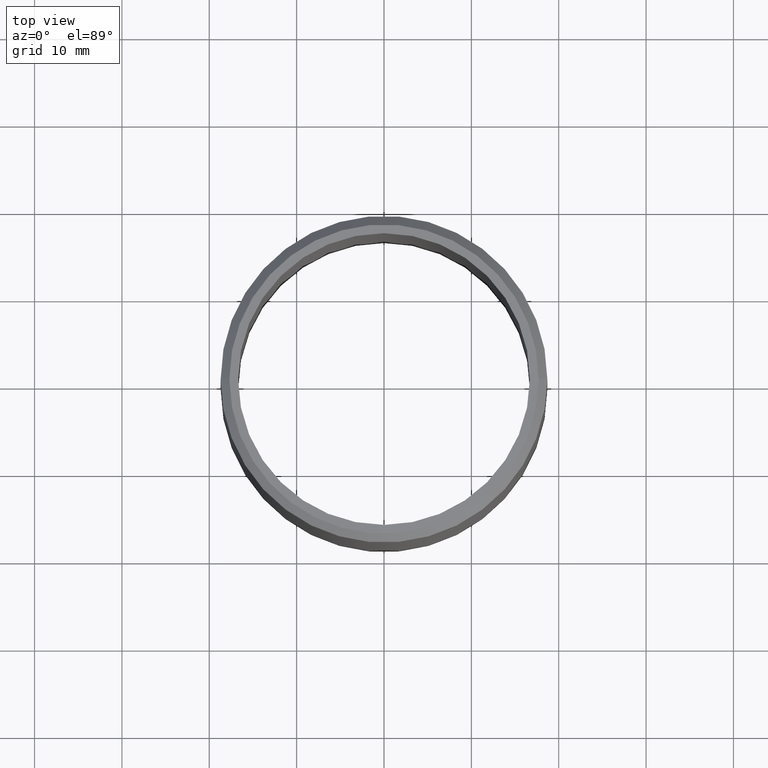
[diagram: clean part render]
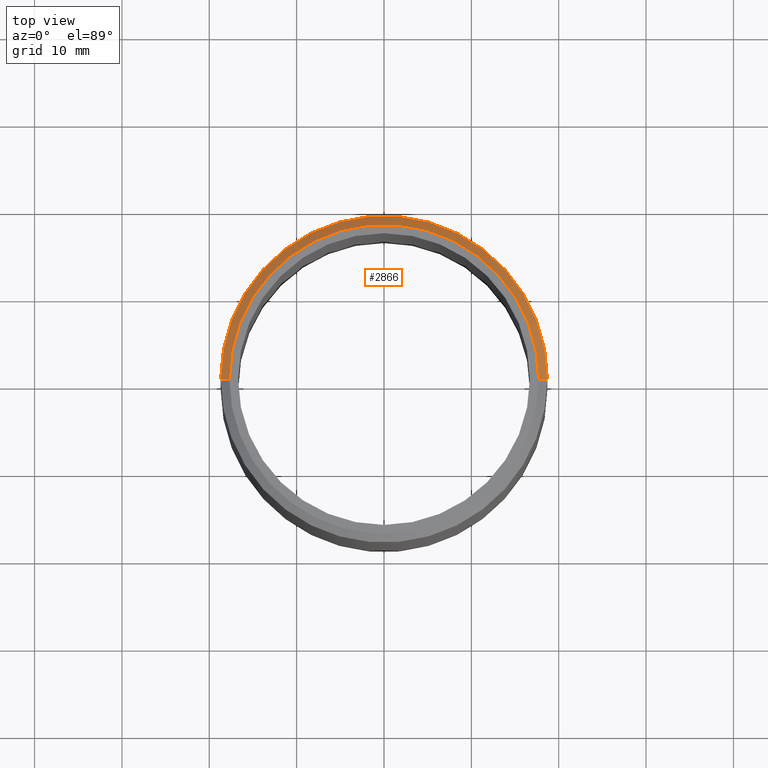
[diagram: same view with one face highlighted and labeled with its STEP entity id]
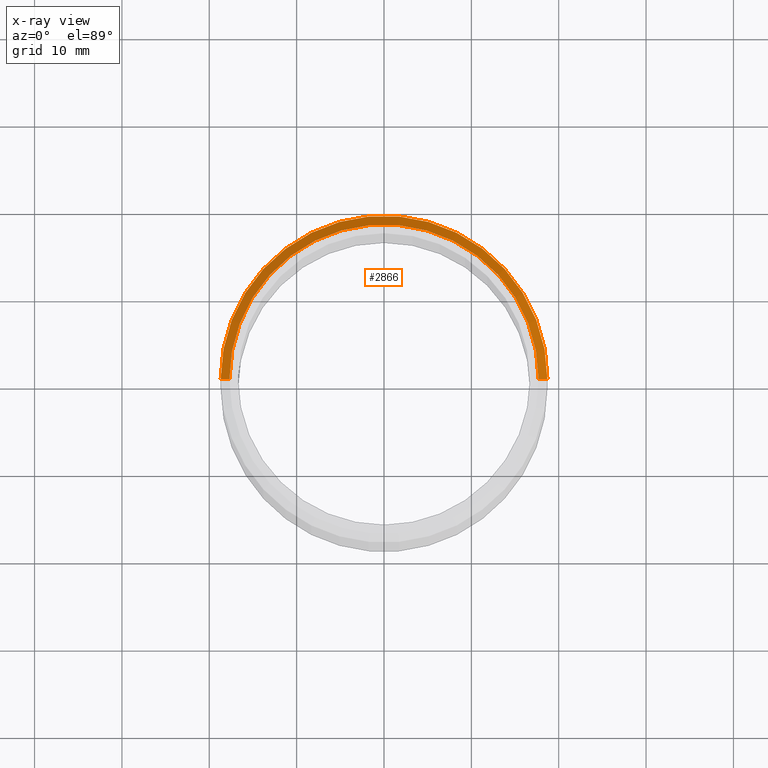
[diagram: x-ray of the same camera — body ghosted, the highlighted face saturated]
A machine part, top view. The second image highlights one B-rep face of the part: STEP entity #2866.
The next image is the same camera in x-ray: the body ghosted, the highlighted face saturated — about 0% of this face is hidden behind the body in this view.
In plain terms, the highlighted conical surface has half-angle 45 deg.
Its self-contained STEP definition (entity closure, byte-faithful):
#472 = LINE ( 'NONE', #8545, #11828 ) ;
#906 = CIRCLE ( 'NONE', #1573, 17.70000000000000600 ) ;
#1141 = VERTEX_POINT ( 'NONE', #10345 ) ;
#1428 = EDGE_CURVE ( 'NONE', #2229, #11589, #906, .T. ) ;
#1516 = CARTESIAN_POINT ( 'NONE',  ( 0.0000000000000000000, 0.0000000000000000000, 31.50000000000000700 ) ) ;
#1573 = AXIS2_PLACEMENT_3D ( 'NONE', #6778, #10673, #10836 ) ;
#1777 = EDGE_CURVE ( 'NONE', #11589, #1141, #472, .T. ) ;
#2001 = FACE_OUTER_BOUND ( 'NONE', #7936, .T. ) ;
#2066 = DIRECTION ( 'NONE',  ( 0.7071067811865463500, 8.659560562354919300E-017, -0.7071067811865487900 ) ) ;
#2229 = VERTEX_POINT ( 'NONE', #2855 ) ;
#2528 = DIRECTION ( 'NONE',  ( 0.0000000000000000000, 0.0000000000000000000, -1.000000000000000000 ) ) ;
#2551 = ORIENTED_EDGE ( 'NONE', *, *, #7473, .T. ) ;
#2627 = ORIENTED_EDGE ( 'NONE', *, *, #1428, .F. ) ;
#2855 = CARTESIAN_POINT ( 'NONE',  ( 17.70000000000000600, 2.228857174448183300E-015, 32.50000000000000000 ) ) ;
#2866 = ADVANCED_FACE ( 'NONE', ( #2001 ), #12141, .T. ) ;
#3156 = AXIS2_PLACEMENT_3D ( 'NONE', #1516, #6504, #12624 ) ;
#3957 = LINE ( 'NONE', #4169, #9043 ) ;
#4169 = CARTESIAN_POINT ( 'NONE',  ( 17.70000000000000600, 2.167624834490816100E-015, 32.50000000000000000 ) ) ;
#4755 = ORIENTED_EDGE ( 'NONE', *, *, #6488, .F. ) ;
#6488 = EDGE_CURVE ( 'NONE', #1141, #12591, #11413, .T. ) ;
#6504 = DIRECTION ( 'NONE',  ( 0.0000000000000000000, 0.0000000000000000000, -1.000000000000000000 ) ) ;
#6778 = CARTESIAN_POINT ( 'NONE',  ( 0.0000000000000000000, 0.0000000000000000000, 32.50000000000000000 ) ) ;
#7473 = EDGE_CURVE ( 'NONE', #2229, #12591, #3957, .T. ) ;
#7936 = EDGE_LOOP ( 'NONE', ( #2627, #2551, #4755, #11475 ) ) ;
#8545 = CARTESIAN_POINT ( 'NONE',  ( -17.70000000000000600, 0.0000000000000000000, 32.50000000000000000 ) ) ;
#9043 = VECTOR ( 'NONE', #2066, 1000.000000000000000 ) ;
#9574 = CARTESIAN_POINT ( 'NONE',  ( 0.0000000000000000000, 0.0000000000000000000, 32.50000000000000000 ) ) ;
#9618 = DIRECTION ( 'NONE',  ( -1.000000000000000000, 0.0000000000000000000, 0.0000000000000000000 ) ) ;
#9924 = AXIS2_PLACEMENT_3D ( 'NONE', #9574, #2528, #9618 ) ;
#10345 = CARTESIAN_POINT ( 'NONE',  ( -18.69999999999999900, 0.0000000000000000000, 31.50000000000000700 ) ) ;
#10673 = DIRECTION ( 'NONE',  ( 0.0000000000000000000, 0.0000000000000000000, 1.000000000000000000 ) ) ;
#10836 = DIRECTION ( 'NONE',  ( 1.000000000000000000, 0.0000000000000000000, 0.0000000000000000000 ) ) ;
#11413 = CIRCLE ( 'NONE', #3156, 18.69999999999999900 ) ;
#11475 = ORIENTED_EDGE ( 'NONE', *, *, #1777, .F. ) ;
#11589 = VERTEX_POINT ( 'NONE', #11694 ) ;
#11694 = CARTESIAN_POINT ( 'NONE',  ( -17.70000000000000600, 0.0000000000000000000, 32.50000000000000000 ) ) ;
#11828 = VECTOR ( 'NONE', #12558, 1000.000000000000000 ) ;
#12141 = CONICAL_SURFACE ( 'NONE', #9924, 17.70000000000000600, 0.7853981633974466100 ) ;
#12210 = CARTESIAN_POINT ( 'NONE',  ( 18.69999999999999900, 2.290089514405550500E-015, 31.50000000000000700 ) ) ;
#12558 = DIRECTION ( 'NONE',  ( -0.7071067811865463500, 0.0000000000000000000, -0.7071067811865487900 ) ) ;
#12591 = VERTEX_POINT ( 'NONE', #12210 ) ;
#12624 = DIRECTION ( 'NONE',  ( 1.000000000000000000, 0.0000000000000000000, 0.0000000000000000000 ) ) ;